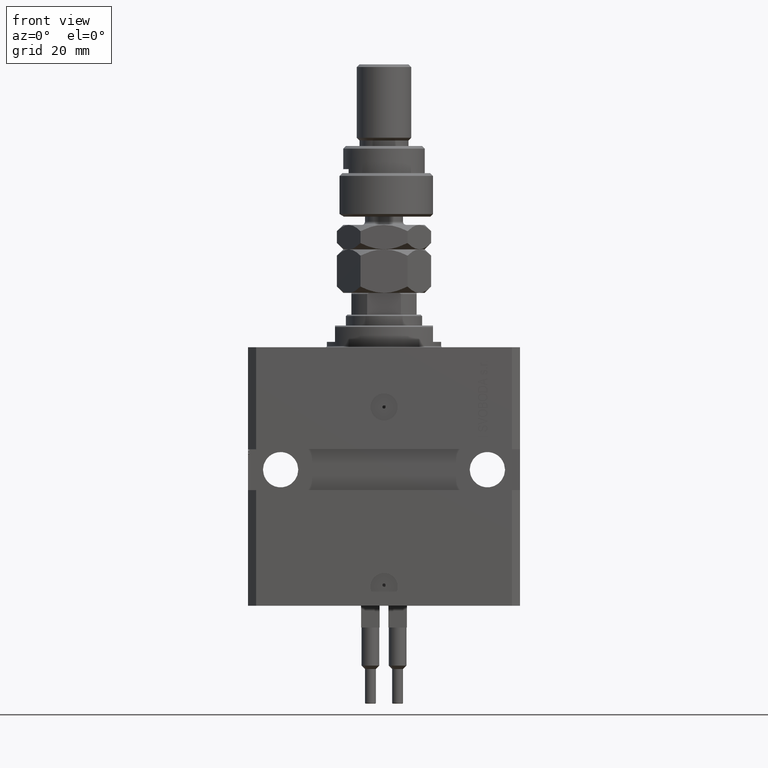
[diagram: clean part render]
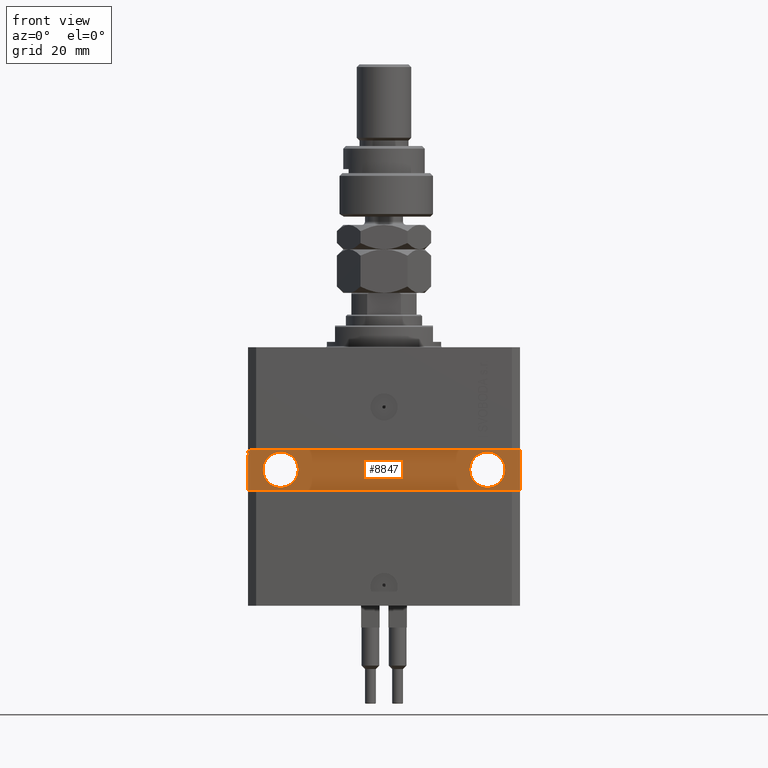
[diagram: same view with one face highlighted and labeled with its STEP entity id]
A machine part, front view. The second image highlights one B-rep face of the part: STEP entity #8847.
In plain terms, the highlighted planar face has unit normal (0, -1, 0).
Its self-contained STEP definition (entity closure, byte-faithful):
#21 = CARTESIAN_POINT ( 'NONE',  ( 49.99999999999999289, -32.49999999999999289, -37.49999999999997868 ) ) ;
#687 = CARTESIAN_POINT ( 'NONE',  ( 49.99999999999999289, -32.49999999999999289, -52.50000000000000000 ) ) ;
#880 = AXIS2_PLACEMENT_3D ( 'NONE', #17848, #22000, #37042 ) ;
#1045 = EDGE_CURVE ( 'NONE', #10331, #29070, #27197, .T. ) ;
#1342 = CARTESIAN_POINT ( 'NONE',  ( -50.00000000000001421, -32.50000000000000711, -37.50000000000000711 ) ) ;
#2286 = EDGE_CURVE ( 'NONE', #31290, #48710, #17254, .T. ) ;
#2357 = ORIENTED_EDGE ( 'NONE', *, *, #3919, .T. ) ;
#3117 = EDGE_CURVE ( 'NONE', #25651, #47951, #46438, .T. ) ;
#3185 = ORIENTED_EDGE ( 'NONE', *, *, #38500, .T. ) ;
#3629 = EDGE_CURVE ( 'NONE', #4433, #33627, #45989, .T. ) ;
#3919 = EDGE_CURVE ( 'NONE', #4529, #33627, #21053, .T. ) ;
#4086 = CIRCLE ( 'NONE', #48006, 6.499999999999999112 ) ;
#4433 = VERTEX_POINT ( 'NONE', #32527 ) ;
#4529 = VERTEX_POINT ( 'NONE', #33049 ) ;
#4567 = ORIENTED_EDGE ( 'NONE', *, *, #3629, .F. ) ;
#4617 = ORIENTED_EDGE ( 'NONE', *, *, #34044, .F. ) ;
#4792 = VECTOR ( 'NONE', #32453, 1000.000000000000000 ) ;
#4923 = CARTESIAN_POINT ( 'NONE',  ( -49.50000000000000711, -32.49999999999999289, -37.62144886363635976 ) ) ;
#5769 = EDGE_CURVE ( 'NONE', #9609, #25651, #27515, .T. ) ;
#5904 = CARTESIAN_POINT ( 'NONE',  ( -50.00000000000001421, -32.50000000000000711, -39.43474002179300442 ) ) ;
#6484 = DIRECTION ( 'NONE',  ( 1.000000000000000000, 0.000000000000000000, 0.000000000000000000 ) ) ;
#6845 = EDGE_CURVE ( 'NONE', #28953, #33376, #4086, .T. ) ;
#7087 = DIRECTION ( 'NONE',  ( -1.000000000000000000, -0.000000000000000000, -0.000000000000000000 ) ) ;
#8811 = VECTOR ( 'NONE', #7087, 1000.000000000000000 ) ;
#8847 = ADVANCED_FACE ( 'NONE', ( #34812, #47269, #43371 ), #26776, .T. ) ;
#9609 = VERTEX_POINT ( 'NONE', #45519 ) ;
#9686 = VECTOR ( 'NONE', #17507, 1000.000000000000000 ) ;
#9740 = ORIENTED_EDGE ( 'NONE', *, *, #14797, .T. ) ;
#10331 = VERTEX_POINT ( 'NONE', #5904 ) ;
#10440 = CARTESIAN_POINT ( 'NONE',  ( -49.50000000000001421, -32.50000000000001421, -38.87066340383893959 ) ) ;
#11506 = EDGE_CURVE ( 'NONE', #17705, #44065, #43944, .T. ) ;
#12055 = CARTESIAN_POINT ( 'NONE',  ( -50.00000000000001421, -32.50000000000000711, -37.50000000000000711 ) ) ;
#12095 = CARTESIAN_POINT ( 'NONE',  ( 38.00000000000001421, -32.50000000000000000, -45.00000000000000000 ) ) ;
#12485 = CARTESIAN_POINT ( 'NONE',  ( 49.99999999999999289, -32.49999999999999289, -52.50000000000000000 ) ) ;
#12695 = LINE ( 'NONE', #4923, #37019 ) ;
#12949 = EDGE_CURVE ( 'NONE', #48710, #9609, #32320, .T. ) ;
#12972 = ORIENTED_EDGE ( 'NONE', *, *, #3117, .T. ) ;
#13678 = ORIENTED_EDGE ( 'NONE', *, *, #5769, .T. ) ;
#13965 = AXIS2_PLACEMENT_3D ( 'NONE', #46760, #43114, #46505 ) ;
#14095 = DIRECTION ( 'NONE',  ( 0.000000000000000000, 0.000000000000000000, -1.000000000000000000 ) ) ;
#14797 = EDGE_CURVE ( 'NONE', #22082, #40642, #12695, .T. ) ;
#15729 = ORIENTED_EDGE ( 'NONE', *, *, #11506, .F. ) ;
#15874 = ORIENTED_EDGE ( 'NONE', *, *, #38597, .F. ) ;
#16154 = CARTESIAN_POINT ( 'NONE',  ( -50.00000000000001421, -32.50000000000000711, -52.50000000000000000 ) ) ;
#16283 = CARTESIAN_POINT ( 'NONE',  ( -49.50000000000001421, -32.50000000000000711, -39.43474002179300442 ) ) ;
#16765 = CARTESIAN_POINT ( 'NONE',  ( -50.00000000000001421, -32.50000000000000711, -37.50000000000000711 ) ) ;
#17254 = LINE ( 'NONE', #40598, #9686 ) ;
#17507 = DIRECTION ( 'NONE',  ( 1.000000000000000000, 1.387778780781445676E-16, 0.000000000000000000 ) ) ;
#17705 = VERTEX_POINT ( 'NONE', #38120 ) ;
#17848 = CARTESIAN_POINT ( 'NONE',  ( -37.99999999999998579, -32.50000000000000711, -45.00000000000000711 ) ) ;
#18222 = AXIS2_PLACEMENT_3D ( 'NONE', #42201, #42976, #19615 ) ;
#18857 = EDGE_LOOP ( 'NONE', ( #4617, #15729 ) ) ;
#19615 = DIRECTION ( 'NONE',  ( 1.000000000000000000, 0.000000000000000000, 0.000000000000000000 ) ) ;
#19771 = ORIENTED_EDGE ( 'NONE', *, *, #1045, .F. ) ;
#20006 = CARTESIAN_POINT ( 'NONE',  ( -50.00000000000001421, -32.50000000000000711, -37.62144886363636687 ) ) ;
#20142 = CARTESIAN_POINT ( 'NONE',  ( -50.00000000000001421, -32.50000000000000711, -37.50000000000000711 ) ) ;
#21053 = LINE ( 'NONE', #1342, #4792 ) ;
#22000 = DIRECTION ( 'NONE',  ( 1.101411730780568590E-16, -1.000000000000000000, 0.000000000000000000 ) ) ;
#22082 = VERTEX_POINT ( 'NONE', #39484 ) ;
#22693 = ORIENTED_EDGE ( 'NONE', *, *, #38831, .T. ) ;
#23698 = VECTOR ( 'NONE', #37683, 1000.000000000000000 ) ;
#23775 = DIRECTION ( 'NONE',  ( 0.000000000000000000, 0.000000000000000000, 1.000000000000000000 ) ) ;
#24022 = DIRECTION ( 'NONE',  ( 8.806446732139697737E-17, -1.000000000000000000, 1.232595164407830672E-32 ) ) ;
#24110 = CARTESIAN_POINT ( 'NONE',  ( -49.49999999999999289, -32.50000000000000711, -39.43474004052496440 ) ) ;
#24984 = VECTOR ( 'NONE', #23775, 1000.000000000000000 ) ;
#25492 = EDGE_CURVE ( 'NONE', #33376, #28953, #38146, .T. ) ;
#25651 = VERTEX_POINT ( 'NONE', #16765 ) ;
#25742 = DIRECTION ( 'NONE',  ( -1.000000000000000000, -0.000000000000000000, -0.000000000000000000 ) ) ;
#26531 = EDGE_LOOP ( 'NONE', ( #2357, #4567, #15874, #19771, #3185, #47960, #26743, #13678, #12972, #48456, #9740, #22693 ) ) ;
#26743 = ORIENTED_EDGE ( 'NONE', *, *, #12949, .T. ) ;
#26776 = PLANE ( 'NONE',  #13965 ) ;
#27197 = LINE ( 'NONE', #16283, #35328 ) ;
#27515 = LINE ( 'NONE', #21, #47133 ) ;
#28131 = CARTESIAN_POINT ( 'NONE',  ( 44.50000000000001421, -32.50000000000000000, -45.00000000000000000 ) ) ;
#28333 = EDGE_LOOP ( 'NONE', ( #30877, #35432 ) ) ;
#28412 = DIRECTION ( 'NONE',  ( 1.000000000000000000, 0.000000000000000000, 0.000000000000000000 ) ) ;
#28547 = CARTESIAN_POINT ( 'NONE',  ( -49.50000000000000711, -32.49999999999999289, -37.62144886363635976 ) ) ;
#28953 = VERTEX_POINT ( 'NONE', #45697 ) ;
#29070 = VERTEX_POINT ( 'NONE', #24110 ) ;
#29588 = VECTOR ( 'NONE', #50591, 1000.000000000000000 ) ;
#30877 = ORIENTED_EDGE ( 'NONE', *, *, #6845, .F. ) ;
#30906 = CIRCLE ( 'NONE', #32561, 6.499999999999999112 ) ;
#31290 = VERTEX_POINT ( 'NONE', #16154 ) ;
#32320 = LINE ( 'NONE', #687, #24984 ) ;
#32453 = DIRECTION ( 'NONE',  ( 0.000000000000000000, 0.000000000000000000, -1.000000000000000000 ) ) ;
#32527 = CARTESIAN_POINT ( 'NONE',  ( -49.49999999999977973, -32.50000000000000711, -38.87066337907741342 ) ) ;
#32561 = AXIS2_PLACEMENT_3D ( 'NONE', #12095, #24022, #28412 ) ;
#33049 = CARTESIAN_POINT ( 'NONE',  ( -50.00000000000001421, -32.50000000000000711, -37.99999999999999289 ) ) ;
#33376 = VERTEX_POINT ( 'NONE', #40795 ) ;
#33627 = VERTEX_POINT ( 'NONE', #38939 ) ;
#34044 = EDGE_CURVE ( 'NONE', #44065, #17705, #30906, .T. ) ;
#34812 = FACE_BOUND ( 'NONE', #18857, .T. ) ;
#35328 = VECTOR ( 'NONE', #43797, 1000.000000000000000 ) ;
#35432 = ORIENTED_EDGE ( 'NONE', *, *, #25492, .F. ) ;
#37019 = VECTOR ( 'NONE', #47981, 1000.000000000000000 ) ;
#37042 = DIRECTION ( 'NONE',  ( 1.000000000000000000, 0.000000000000000000, 0.000000000000000000 ) ) ;
#37435 = LINE ( 'NONE', #41341, #23698 ) ;
#37683 = DIRECTION ( 'NONE',  ( 3.791485858024926499E-13, 5.261743621399925654E-29, 1.000000000000000000 ) ) ;
#38120 = CARTESIAN_POINT ( 'NONE',  ( 31.50000000000001421, -32.50000000000000000, -45.00000000000000000 ) ) ;
#38146 = CIRCLE ( 'NONE', #880, 6.499999999999999112 ) ;
#38356 = CARTESIAN_POINT ( 'NONE',  ( -37.99999999999998579, -32.50000000000000711, -45.00000000000000711 ) ) ;
#38500 = EDGE_CURVE ( 'NONE', #10331, #31290, #47595, .T. ) ;
#38597 = EDGE_CURVE ( 'NONE', #29070, #4433, #37435, .T. ) ;
#38831 = EDGE_CURVE ( 'NONE', #40642, #4529, #50673, .T. ) ;
#38939 = CARTESIAN_POINT ( 'NONE',  ( -50.00000000000001421, -32.50000000000000711, -38.87066340383893959 ) ) ;
#39416 = VECTOR ( 'NONE', #14095, 1000.000000000000000 ) ;
#39484 = CARTESIAN_POINT ( 'NONE',  ( -49.50000000000000711, -32.50000000000000711, -37.62144886363635976 ) ) ;
#39586 = VECTOR ( 'NONE', #25742, 1000.000000000000000 ) ;
#40598 = CARTESIAN_POINT ( 'NONE',  ( -50.00000000000001421, -32.50000000000000711, -52.50000000000000000 ) ) ;
#40642 = VERTEX_POINT ( 'NONE', #47613 ) ;
#40795 = CARTESIAN_POINT ( 'NONE',  ( -44.49999999999998579, -32.50000000000000711, -45.00000000000000711 ) ) ;
#41341 = CARTESIAN_POINT ( 'NONE',  ( -49.50000000000016342, -32.50000000000000711, -39.86910993535713743 ) ) ;
#42002 = DIRECTION ( 'NONE',  ( 1.101411730780568590E-16, -1.000000000000000000, 0.000000000000000000 ) ) ;
#42201 = CARTESIAN_POINT ( 'NONE',  ( 38.00000000000001421, -32.50000000000000000, -45.00000000000000000 ) ) ;
#42976 = DIRECTION ( 'NONE',  ( 8.806446732139697737E-17, -1.000000000000000000, 1.232595164407830672E-32 ) ) ;
#43114 = DIRECTION ( 'NONE',  ( 1.387778780781445676E-16, -1.000000000000000000, 0.000000000000000000 ) ) ;
#43349 = DIRECTION ( 'NONE',  ( -1.000000000000000000, -1.387778780781445676E-16, -2.775557561562891351E-16 ) ) ;
#43371 = FACE_OUTER_BOUND ( 'NONE', #26531, .T. ) ;
#43626 = DIRECTION ( 'NONE',  ( -1.000000000000000000, -0.000000000000000000, -0.000000000000000000 ) ) ;
#43797 = DIRECTION ( 'NONE',  ( 1.000000000000000000, 0.000000000000000000, 0.000000000000000000 ) ) ;
#43944 = CIRCLE ( 'NONE', #18222, 6.499999999999999112 ) ;
#44065 = VERTEX_POINT ( 'NONE', #28131 ) ;
#45519 = CARTESIAN_POINT ( 'NONE',  ( 49.99999999999999289, -32.49999999999999289, -37.49999999999997868 ) ) ;
#45697 = CARTESIAN_POINT ( 'NONE',  ( -31.49999999999998579, -32.50000000000000711, -45.00000000000000711 ) ) ;
#45989 = LINE ( 'NONE', #10440, #39586 ) ;
#46438 = LINE ( 'NONE', #20142, #29588 ) ;
#46505 = DIRECTION ( 'NONE',  ( 1.000000000000000000, 1.387778780781445676E-16, 0.000000000000000000 ) ) ;
#46520 = CARTESIAN_POINT ( 'NONE',  ( -49.50000000000000711, -32.49999999999999289, -37.99999999999999289 ) ) ;
#46760 = CARTESIAN_POINT ( 'NONE',  ( 4.616128571667027759E-15, -32.50000000000000000, 0.000000000000000000 ) ) ;
#47133 = VECTOR ( 'NONE', #43349, 1000.000000000000000 ) ;
#47269 = FACE_BOUND ( 'NONE', #28333, .T. ) ;
#47595 = LINE ( 'NONE', #12055, #39416 ) ;
#47613 = CARTESIAN_POINT ( 'NONE',  ( -49.50000000000000711, -32.50000000000000711, -37.99999999999999289 ) ) ;
#47951 = VERTEX_POINT ( 'NONE', #20006 ) ;
#47960 = ORIENTED_EDGE ( 'NONE', *, *, #2286, .T. ) ;
#47981 = DIRECTION ( 'NONE',  ( 0.000000000000000000, 0.000000000000000000, -1.000000000000000000 ) ) ;
#48006 = AXIS2_PLACEMENT_3D ( 'NONE', #38356, #42002, #6484 ) ;
#48280 = LINE ( 'NONE', #28547, #49299 ) ;
#48456 = ORIENTED_EDGE ( 'NONE', *, *, #48673, .F. ) ;
#48673 = EDGE_CURVE ( 'NONE', #22082, #47951, #48280, .T. ) ;
#48710 = VERTEX_POINT ( 'NONE', #12485 ) ;
#49299 = VECTOR ( 'NONE', #43626, 1000.000000000000000 ) ;
#50591 = DIRECTION ( 'NONE',  ( 0.000000000000000000, 0.000000000000000000, -1.000000000000000000 ) ) ;
#50673 = LINE ( 'NONE', #46520, #8811 ) ;